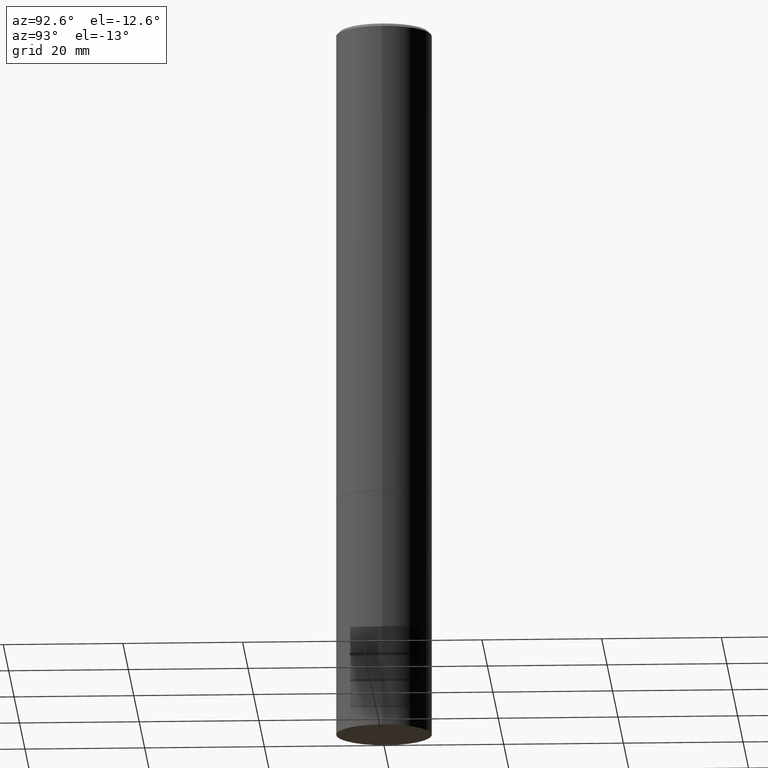
[diagram: clean part render]
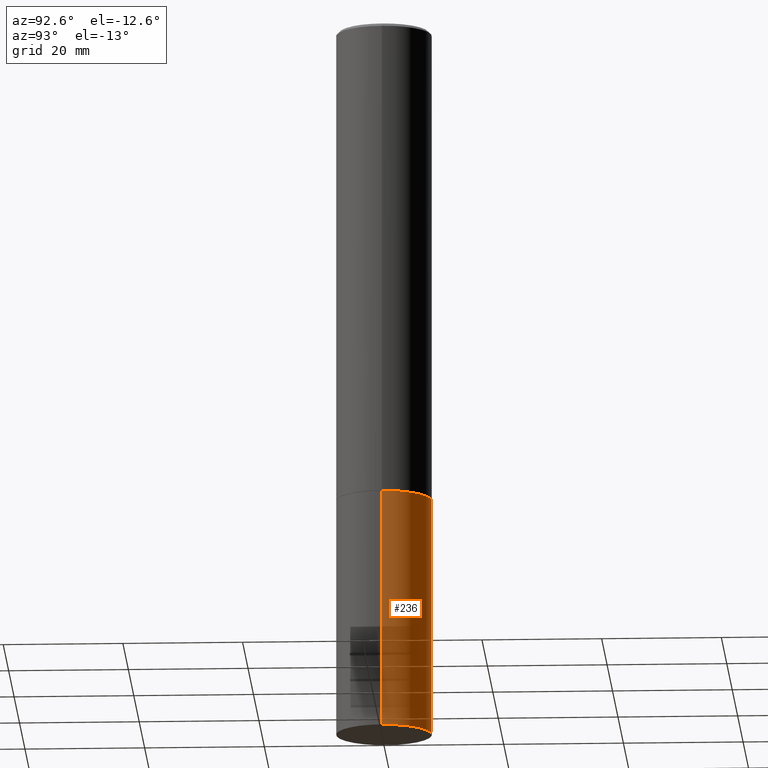
[diagram: same view with one face highlighted and labeled with its STEP entity id]
A machine part, auxiliary view. The second image highlights one B-rep face of the part: STEP entity #236.
In plain terms, the highlighted cylindrical surface (partial cylindrical patch) has radius 7.9997 mm, axis along (-0, 0, 1).
Its self-contained STEP definition (entity closure, byte-faithful):
#4 = DIRECTION ( 'NONE',  ( 1.000000000000000000, -6.982962677686263555E-15, 0.000000000000000000 ) ) ;
#7 = DIRECTION ( 'NONE',  ( -2.445468806185136597E-29, 3.491481338843145583E-15, 1.000000000000000000 ) ) ;
#8 = CARTESIAN_POINT ( 'NONE',  ( 0.3149500000000000077, -2.199284095337289871E-15, 1.535751875536930130E-29 ) ) ;
#16 = ORIENTED_EDGE ( 'NONE', *, *, #20, .T. ) ;
#20 = EDGE_CURVE ( 'NONE', #244, #212, #348, .T. ) ;
#30 = DIRECTION ( 'NONE',  ( -2.445468806185136597E-29, 3.491481338843145583E-15, 1.000000000000000000 ) ) ;
#35 = CARTESIAN_POINT ( 'NONE',  ( 7.702248551960704469E-29, -1.099676962482037073E-14, -3.149599999999999511 ) ) ;
#60 = AXIS2_PLACEMENT_3D ( 'NONE', #170, #216, #4 ) ;
#69 = LINE ( 'NONE', #8, #127 ) ;
#88 = CARTESIAN_POINT ( 'NONE',  ( -0.3149500000000000077, -1.150810768474902901E-14, -4.724400000000000155 ) ) ;
#97 = CYLINDRICAL_SURFACE ( 'NONE', #240, 0.3149500000000000077 ) ;
#106 = CIRCLE ( 'NONE', #282, 0.3149500000000000077 ) ;
#118 = LINE ( 'NONE', #287, #347 ) ;
#127 = VECTOR ( 'NONE', #341, 39.37007874015748143 ) ;
#144 = EDGE_LOOP ( 'NONE', ( #16, #159, #319, #157 ) ) ;
#146 = CARTESIAN_POINT ( 'NONE',  ( 0.3149500000000000077, -1.319605372015765902E-14, -3.149599999999999511 ) ) ;
#157 = ORIENTED_EDGE ( 'NONE', *, *, #243, .F. ) ;
#159 = ORIENTED_EDGE ( 'NONE', *, *, #254, .T. ) ;
#170 = CARTESIAN_POINT ( 'NONE',  ( 1.155337282794105951E-28, -1.649515443723055925E-14, -4.724400000000000155 ) ) ;
#199 = FACE_OUTER_BOUND ( 'NONE', #144, .T. ) ;
#207 = CARTESIAN_POINT ( 'NONE',  ( 0.000000000000000000, 0.000000000000000000, 0.000000000000000000 ) ) ;
#211 = VERTEX_POINT ( 'NONE', #308 ) ;
#212 = VERTEX_POINT ( 'NONE', #88 ) ;
#216 = DIRECTION ( 'NONE',  ( -2.445468806185136597E-29, 3.491481338843145583E-15, 1.000000000000000000 ) ) ;
#230 = DIRECTION ( 'NONE',  ( 1.000000000000000000, -6.982962677686263555E-15, 0.000000000000000000 ) ) ;
#234 = CARTESIAN_POINT ( 'NONE',  ( 0.3149500000000000077, -1.869443853256784755E-14, -4.724400000000000155 ) ) ;
#236 = ADVANCED_FACE ( 'NONE', ( #199 ), #97, .T. ) ;
#240 = AXIS2_PLACEMENT_3D ( 'NONE', #207, #30, #313 ) ;
#243 = EDGE_CURVE ( 'NONE', #244, #269, #69, .T. ) ;
#244 = VERTEX_POINT ( 'NONE', #234 ) ;
#254 = EDGE_CURVE ( 'NONE', #212, #211, #118, .T. ) ;
#269 = VERTEX_POINT ( 'NONE', #146 ) ;
#282 = AXIS2_PLACEMENT_3D ( 'NONE', #35, #7, #230 ) ;
#287 = CARTESIAN_POINT ( 'NONE',  ( -0.3149500000000000077, 2.237854346276435590E-15, -1.549218606675782676E-29 ) ) ;
#296 = EDGE_CURVE ( 'NONE', #269, #211, #106, .T. ) ;
#308 = CARTESIAN_POINT ( 'NONE',  ( -0.3149500000000000077, -1.150810768474902901E-14, -3.149599999999999511 ) ) ;
#312 = DIRECTION ( 'NONE',  ( -2.445468806185136877E-29, 3.491481338843145188E-15, 1.000000000000000000 ) ) ;
#313 = DIRECTION ( 'NONE',  ( 1.000000000000000000, -6.982962677686266711E-15, 4.876176775795936353E-29 ) ) ;
#319 = ORIENTED_EDGE ( 'NONE', *, *, #296, .F. ) ;
#341 = DIRECTION ( 'NONE',  ( -2.445468806185136877E-29, 3.491481338843145188E-15, 1.000000000000000000 ) ) ;
#347 = VECTOR ( 'NONE', #312, 39.37007874015748143 ) ;
#348 = CIRCLE ( 'NONE', #60, 0.3149500000000000077 ) ;